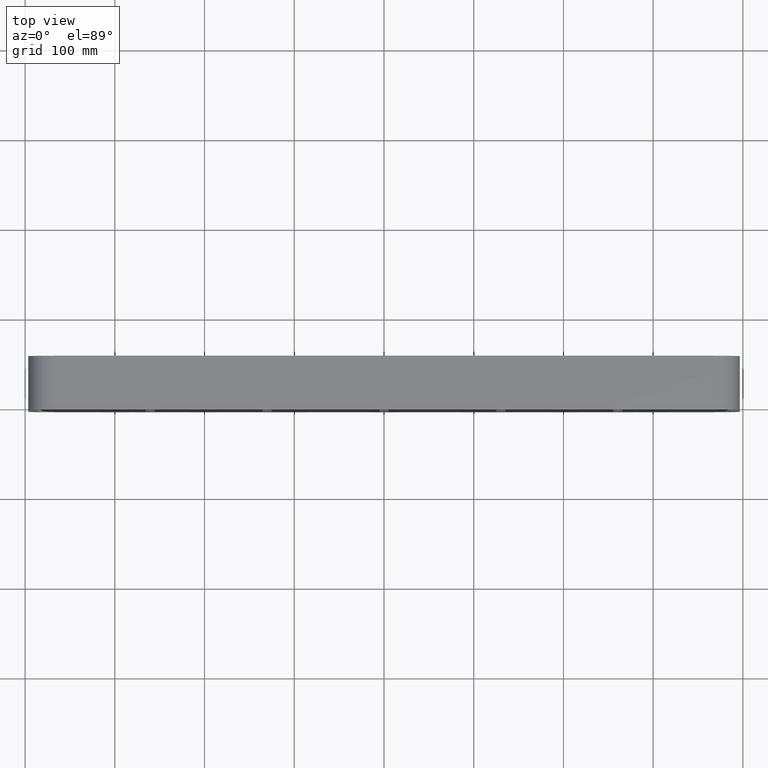
[diagram: clean part render]
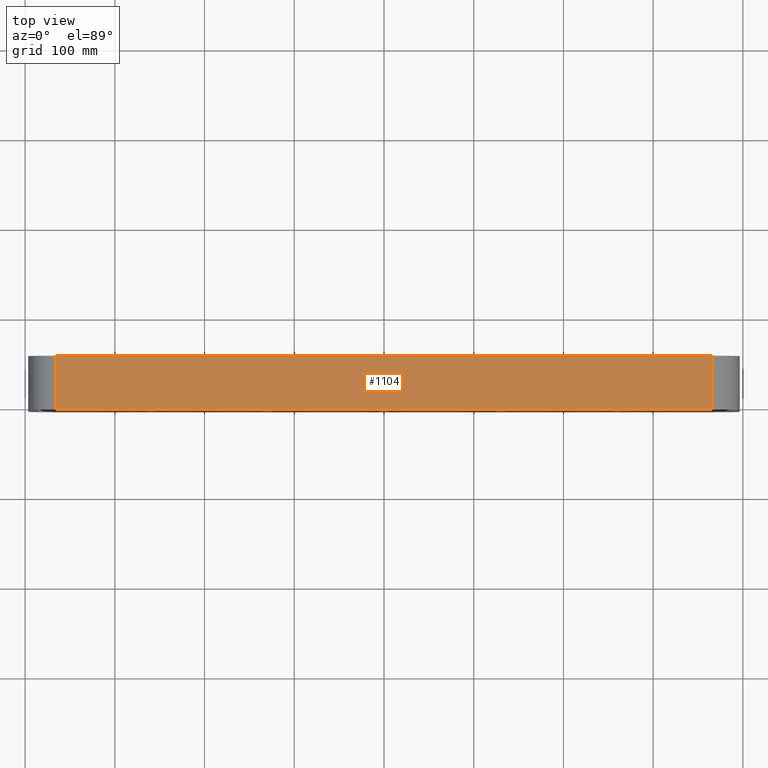
[diagram: same view with one face highlighted and labeled with its STEP entity id]
A machine part, top view. The second image highlights one B-rep face of the part: STEP entity #1104.
In plain terms, the highlighted planar face has unit normal (0, 0, 1).
Its self-contained STEP definition (entity closure, byte-faithful):
#824=CARTESIAN_POINT('',(366.50000000000006,-3.0,89.750000000000014));
#825=VERTEX_POINT('',#824);
#833=CARTESIAN_POINT('',(-366.50000000000006,-3.0,89.750000000000014));
#834=VERTEX_POINT('',#833);
#835=CARTESIAN_POINT('',(366.50000000000006,-3.0,89.750000000000014));
#836=DIRECTION('',(-1.0,0.0,0.0));
#837=VECTOR('',#836,733.00000000000011);
#838=LINE('',#835,#837);
#839=EDGE_CURVE('',#825,#834,#838,.T.);
#989=CARTESIAN_POINT('',(366.50000000000006,57.0,89.750000000000014));
#990=VERTEX_POINT('',#989);
#998=CARTESIAN_POINT('',(366.50000000000006,57.0,89.750000000000014));
#999=DIRECTION('',(0.0,-1.0,0.0));
#1000=VECTOR('',#999,60.0);
#1001=LINE('',#998,#1000);
#1002=EDGE_CURVE('',#990,#825,#1001,.T.);
#1068=CARTESIAN_POINT('',(-366.50000000000006,57.0,89.750000000000014));
#1069=VERTEX_POINT('',#1068);
#1079=CARTESIAN_POINT('',(-366.50000000000006,-3.0,89.750000000000014));
#1080=DIRECTION('',(0.0,1.0,0.0));
#1081=VECTOR('',#1080,60.0);
#1082=LINE('',#1079,#1081);
#1083=EDGE_CURVE('',#834,#1069,#1082,.T.);
#1088=CARTESIAN_POINT('',(-396.50000000000006,0.0,89.750000000000014));
#1089=DIRECTION('',(0.0,0.0,1.0));
#1090=DIRECTION('',(1.0,0.0,0.0));
#1091=AXIS2_PLACEMENT_3D('',#1088,#1089,#1090);
#1092=PLANE('',#1091);
#1093=ORIENTED_EDGE('',*,*,#1002,.F.);
#1094=CARTESIAN_POINT('',(-366.50000000000006,57.0,89.750000000000014));
#1095=DIRECTION('',(1.0,0.0,0.0));
#1096=VECTOR('',#1095,733.00000000000011);
#1097=LINE('',#1094,#1096);
#1098=EDGE_CURVE('',#1069,#990,#1097,.T.);
#1099=ORIENTED_EDGE('',*,*,#1098,.F.);
#1100=ORIENTED_EDGE('',*,*,#1083,.F.);
#1101=ORIENTED_EDGE('',*,*,#839,.F.);
#1102=EDGE_LOOP('',(#1093,#1099,#1100,#1101));
#1103=FACE_OUTER_BOUND('',#1102,.T.);
#1104=ADVANCED_FACE('',(#1103),#1092,.T.);